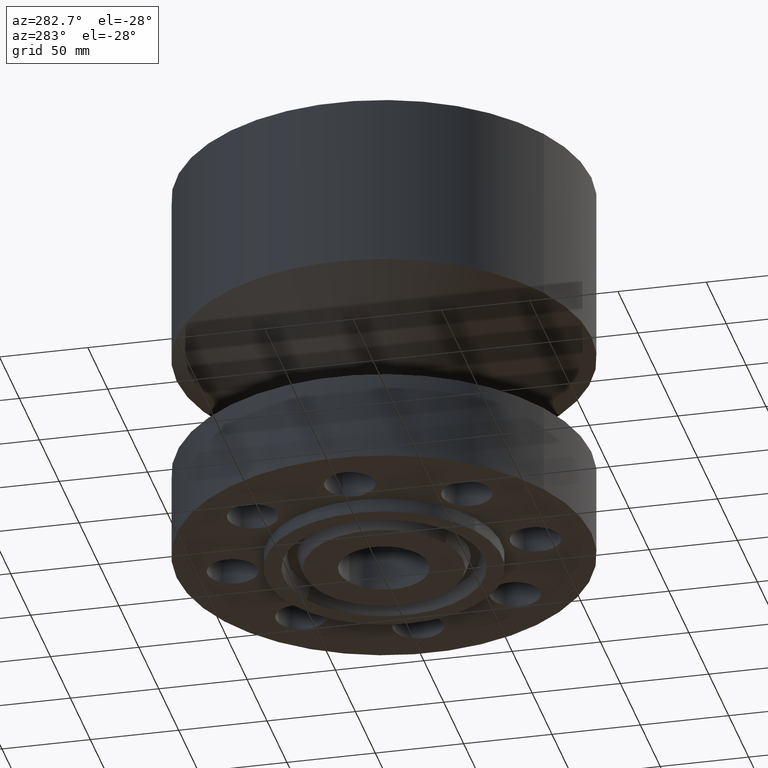
[diagram: clean part render]
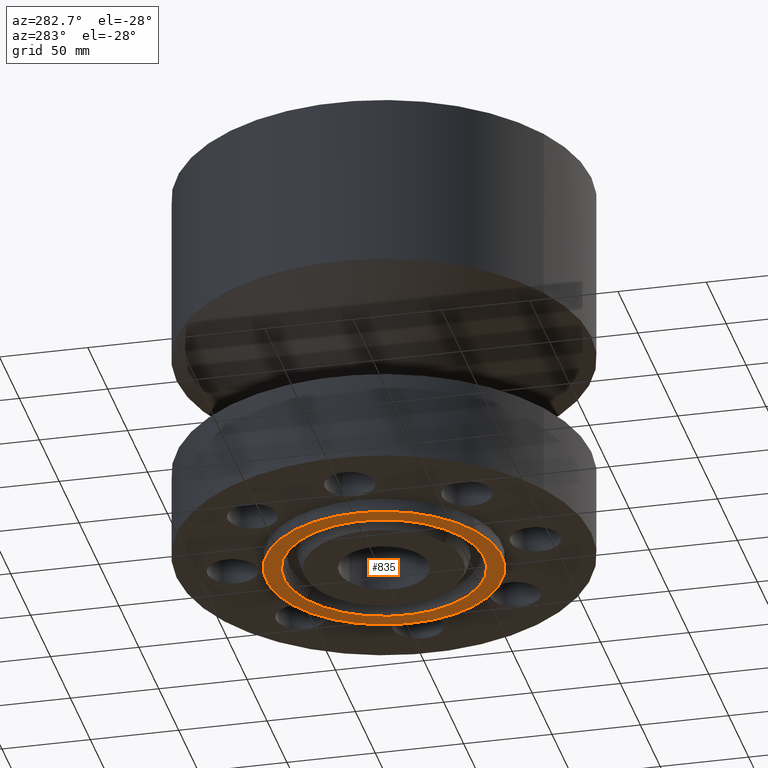
[diagram: same view with one face highlighted and labeled with its STEP entity id]
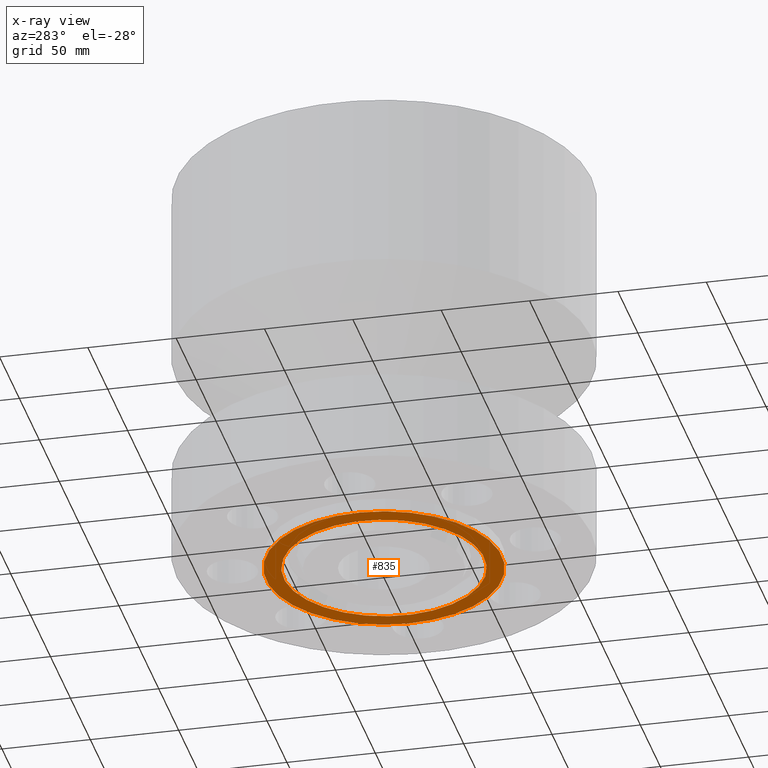
[diagram: x-ray of the same camera — body ghosted, the highlighted face saturated]
A machine part, auxiliary view. The second image highlights one B-rep face of the part: STEP entity #835.
The next image is the same camera in x-ray: the body ghosted, the highlighted face saturated — about 0% of this face is hidden behind the body in this view.
In plain terms, the highlighted planar face has unit normal (0, 0, -1).
Its self-contained STEP definition (entity closure, byte-faithful):
#593=AXIS2_PLACEMENT_3D('Plane Axis2P3D',#590,#591,#592) ;
#784=AXIS2_PLACEMENT_3D('Circle Axis2P3D',#782,#783,$) ;
#803=AXIS2_PLACEMENT_3D('Circle Axis2P3D',#801,#802,$) ;
#815=AXIS2_PLACEMENT_3D('Circle Axis2P3D',#813,#814,$) ;
#824=AXIS2_PLACEMENT_3D('Circle Axis2P3D',#822,#823,$) ;
#590=CARTESIAN_POINT('Axis2P3D Location',(0.,1.,-0.313000000001)) ;
#779=CARTESIAN_POINT('Vertex',(-1.07127636602,-1.96095823455,-0.313000000001)) ;
#782=CARTESIAN_POINT('Axis2P3D Location',(0.,0.,-0.313000000001)) ;
#786=CARTESIAN_POINT('Vertex',(1.07127636602,1.96095823455,-0.313000000001)) ;
#801=CARTESIAN_POINT('Axis2P3D Location',(0.,0.,-0.313000000001)) ;
#813=CARTESIAN_POINT('Axis2P3D Location',(0.,0.,-0.313000000001)) ;
#817=CARTESIAN_POINT('Vertex',(-1.25849203884,-2.30365422497,-0.313000000001)) ;
#819=CARTESIAN_POINT('Vertex',(1.25849203884,2.30365422497,-0.313000000001)) ;
#822=CARTESIAN_POINT('Axis2P3D Location',(0.,0.,-0.313000000001)) ;
#591=DIRECTION('Axis2P3D Direction',(0.,0.,-0.0393700787402)) ;
#592=DIRECTION('Axis2P3D XDirection',(0.0393700787402,0.,0.)) ;
#783=DIRECTION('Axis2P3D Direction',(0.,0.,-0.0393700787402)) ;
#802=DIRECTION('Axis2P3D Direction',(0.,0.,-0.0393700787402)) ;
#814=DIRECTION('Axis2P3D Direction',(0.,0.,-0.0393700787402)) ;
#823=DIRECTION('Axis2P3D Direction',(0.,0.,-0.0393700787402)) ;
#828=ORIENTED_EDGE('',*,*,#821,.T.) ;
#829=ORIENTED_EDGE('',*,*,#826,.T.) ;
#832=ORIENTED_EDGE('',*,*,#805,.F.) ;
#833=ORIENTED_EDGE('',*,*,#788,.F.) ;
#834=FACE_BOUND('',#831,.T.) ;
#835=ADVANCED_FACE('PartBody',(#830,#834),#594,.T.) ;
#785=CIRCLE('generated circle',#784,2.23450000001) ;
#804=CIRCLE('generated circle',#803,2.23450000001) ;
#816=CIRCLE('generated circle',#815,2.62500000001) ;
#825=CIRCLE('generated circle',#824,2.62500000001) ;
#788=EDGE_CURVE('',#780,#787,#785,.T.) ;
#805=EDGE_CURVE('',#787,#780,#804,.T.) ;
#821=EDGE_CURVE('',#818,#820,#816,.T.) ;
#826=EDGE_CURVE('',#820,#818,#825,.T.) ;
#827=EDGE_LOOP('',(#828,#829)) ;
#831=EDGE_LOOP('',(#832,#833)) ;
#830=FACE_OUTER_BOUND('',#827,.T.) ;
#594=PLANE('',#593) ;
#780=VERTEX_POINT('',#779) ;
#787=VERTEX_POINT('',#786) ;
#818=VERTEX_POINT('',#817) ;
#820=VERTEX_POINT('',#819) ;